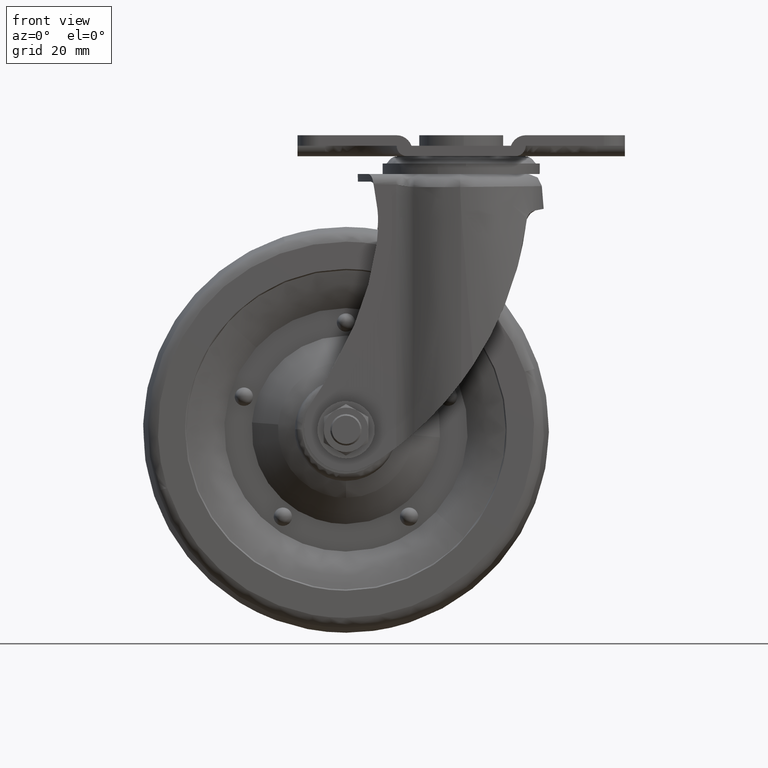
[diagram: clean part render]
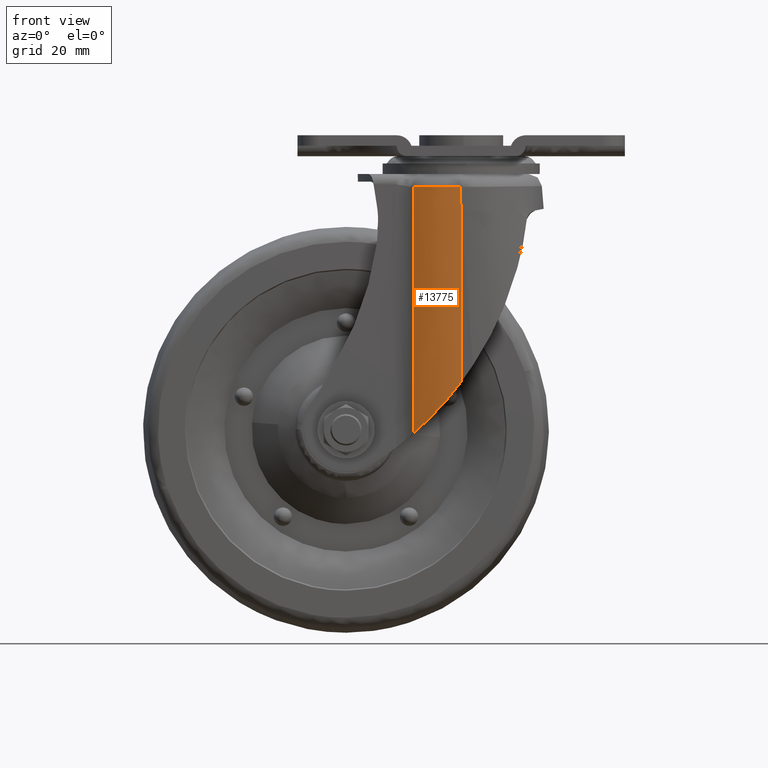
[diagram: same view with one face highlighted and labeled with its STEP entity id]
A machine part, front view. The second image highlights one B-rep face of the part: STEP entity #13775.
In plain terms, the highlighted face is a freeform B-spline surface patch.
Its self-contained STEP definition (entity closure, byte-faithful):
#13026=CARTESIAN_POINT('',(-0.369725806566333,-31.497833906916451,-19.799999999999550));
#13027=VERTEX_POINT('',#13026);
#13028=CARTESIAN_POINT('',(-17.988086873891149,-25.859047059812749,-19.800000000000001));
#13029=VERTEX_POINT('',#13028);
#13030=CARTESIAN_POINT('',(-0.369725806566333,-31.497833906916451,-19.799999999999550));
#13031=CARTESIAN_POINT('',(-10.044941774683258,-31.384363830893584,-19.800000000000001));
#13032=CARTESIAN_POINT('',(-17.988086873891159,-25.859047059812760,-19.800000000000001));
#13040=(BOUNDED_CURVE()B_SPLINE_CURVE(2,(#13030,#13031,#13032),.UNSPECIFIED.,.F.,.U.)CURVE()GEOMETRIC_REPRESENTATION_ITEM()QUASI_UNIFORM_CURVE()RATIONAL_B_SPLINE_CURVE((1.0,0.955919014907805,1.0))REPRESENTATION_ITEM(''));
#13041=EDGE_CURVE('',#13027,#13029,#13040,.T.);
#13347=CARTESIAN_POINT('',(-17.988086873891149,-25.859047059812749,-113.639846801508200));
#13348=VERTEX_POINT('',#13347);
#13349=CARTESIAN_POINT('',(-17.988086873891149,-25.859047059812749,-19.800000000000001));
#13350=CARTESIAN_POINT('',(-17.988086873891149,-25.859047059812749,-113.639846801508200));
#13351=QUASI_UNIFORM_CURVE('',1,(#13349,#13350),.UNSPECIFIED.,.F.,.U.);
#13352=EDGE_CURVE('',#13029,#13348,#13351,.T.);
#13418=CARTESIAN_POINT('',(-0.000322000000095,-31.500000000000000,-29.318360351803150));
#13419=VERTEX_POINT('',#13418);
#13420=CARTESIAN_POINT('',(-0.000322000000095,-31.500000000000000,-29.318360351803150));
#13421=CARTESIAN_POINT('',(-0.185030254001256,-31.499999999999996,-24.559016538110559));
#13422=CARTESIAN_POINT('',(-0.369725806565046,-31.497833906916451,-19.800000000032711));
#13430=(BOUNDED_CURVE()B_SPLINE_CURVE(2,(#13420,#13421,#13422),.UNSPECIFIED.,.F.,.U.)CURVE()GEOMETRIC_REPRESENTATION_ITEM()QUASI_UNIFORM_CURVE()RATIONAL_B_SPLINE_CURVE((1.0,0.999982808640822,1.0))REPRESENTATION_ITEM(''));
#13431=EDGE_CURVE('',#13419,#13027,#13430,.T.);
#13719=CARTESIAN_POINT('',(0.274563868198657,-31.498800576521390,-115.985842971545910));
#13720=CARTESIAN_POINT('',(0.274563868198657,-31.498800576521390,-17.395353925710911));
#13721=CARTESIAN_POINT('',(-10.276011459862316,-31.590874052525802,-115.985842971545960));
#13722=CARTESIAN_POINT('',(-10.276011459862316,-31.590874052525802,-17.395353925710907));
#13723=CARTESIAN_POINT('',(-18.753463104601352,-25.309478436169211,-115.985842971545910));
#13724=CARTESIAN_POINT('',(-18.753463104601352,-25.309478436169211,-17.395353925710911));
#13732=(BOUNDED_SURFACE()B_SPLINE_SURFACE(1,2,((#13719,#13721,#13723),(#13720,#13722,#13724)),.UNSPECIFIED.,.F.,.F.,.U.)B_SPLINE_SURFACE_WITH_KNOTS((2,2),(3,3),(0.0,98.590489045835014),(0.0,20.541115767683330),.UNSPECIFIED.)GEOMETRIC_REPRESENTATION_ITEM()RATIONAL_B_SPLINE_SURFACE(((1.0,0.946923351914694,0.997262890280492),(1.0,0.946923351914694,0.997262890280492)))REPRESENTATION_ITEM('')SURFACE());
#13733=ORIENTED_EDGE('',*,*,#13431,.T.);
#13734=ORIENTED_EDGE('',*,*,#13041,.T.);
#13735=ORIENTED_EDGE('',*,*,#13352,.T.);
#13736=CARTESIAN_POINT('',(-0.000322000000094,-31.500000000000000,-94.213526390014906));
#13737=VERTEX_POINT('',#13736);
#13738=CARTESIAN_POINT('',(-0.000322000000027,-31.500000000000000,-94.213526390014962));
#13739=CARTESIAN_POINT('',(-0.686058448308626,-31.499999999999989,-95.125542541847736));
#13740=CARTESIAN_POINT('',(-1.384627698495013,-31.477647313421130,-96.029572104286800));
#13741=CARTESIAN_POINT('',(-2.451981953962543,-31.406472408309270,-97.373653620240589));
#13742=CARTESIAN_POINT('',(-2.811017495478358,-31.376465804297020,-97.819686821035987));
#13743=CARTESIAN_POINT('',(-3.354485397630283,-31.321442204760132,-98.485746471866619));
#13744=CARTESIAN_POINT('',(-3.536590083652920,-31.301415194181779,-98.707423856580576));
#13745=CARTESIAN_POINT('',(-3.901633866474933,-31.258015785371249,-99.148804615724629));
#13746=CARTESIAN_POINT('',(-4.084586516214400,-31.234644823498130,-99.368527252586972));
#13747=CARTESIAN_POINT('',(-5.001444730591770,-31.109272470588781,-100.462304204248990));
#13748=CARTESIAN_POINT('',(-5.741640406804667,-30.981746336468369,-101.321854126955700));
#13749=CARTESIAN_POINT('',(-7.233867135285645,-30.667689314347950,-103.010007756939300));
#13750=CARTESIAN_POINT('',(-7.985900296583076,-30.481167017533000,-103.838612310782000));
#13751=CARTESIAN_POINT('',(-9.500056094553493,-30.043735713362601,-105.464750393224800));
#13752=CARTESIAN_POINT('',(-10.262181704416010,-29.792839132118399,-106.262285220057900));
#13753=CARTESIAN_POINT('',(-11.794535508543730,-29.220122447729189,-107.826004647806900));
#13754=CARTESIAN_POINT('',(-12.564768106343690,-28.898321179875669,-108.592191315080400));
#13755=CARTESIAN_POINT('',(-14.110999925818970,-28.175646247216239,-110.092731807261000));
#13756=CARTESIAN_POINT('',(-14.887006038011791,-27.774802667249599,-110.827089069284990));
#13757=CARTESIAN_POINT('',(-15.858836840335229,-27.217782718512101,-111.724661501980190));
#13758=CARTESIAN_POINT('',(-16.150520449994509,-27.046468676748091,-111.992403887485300));
#13759=CARTESIAN_POINT('',(-16.442347468067521,-26.868622332038431,-112.257834456599000));
#13760=CARTESIAN_POINT('',(-16.636923834819381,-26.748580278287282,-112.434272246928400));
#13761=CARTESIAN_POINT('',(-16.734281430626829,-26.687783886112939,-112.522284254030790));
#13762=CARTESIAN_POINT('',(-17.219987221055980,-26.380758922336401,-112.960034877226210));
#13763=CARTESIAN_POINT('',(-17.605642423851730,-26.125078550792360,-113.303352359475300));
#13764=CARTESIAN_POINT('',(-17.988086873891149,-25.859047059812770,-113.639846801508200));
#13765=B_SPLINE_CURVE_WITH_KNOTS('',3,(#13738,#13739,#13740,#13741,#13742,#13743,#13744,#13745,#13746,#13747,#13748,#13749,#13750,#13751,#13752,#13753,#13754,#13755,#13756,#13757,#13758,#13759,#13760,#13761,#13762,#13763,#13764),.UNSPECIFIED.,.F.,.U.,(4,2,2,2,2,2,2,2,2,2,1,2,2,4),(0.0,0.124999999999999,0.187499999999998,0.218749999999998,0.249999999999998,0.374999999999998,0.499999999999999,0.624999999999999,0.749999999999999,0.874999999999999,0.906249999999999,0.921874999999999,0.937499999999998,1.0),.UNSPECIFIED.);
#13766=EDGE_CURVE('',#13737,#13348,#13765,.T.);
#13767=ORIENTED_EDGE('',*,*,#13766,.F.);
#13768=CARTESIAN_POINT('',(-0.000322000000094,-31.500000000000000,-94.213526390014906));
#13769=CARTESIAN_POINT('',(-0.000322000000095,-31.500000000000000,-29.318360351803150));
#13770=QUASI_UNIFORM_CURVE('',1,(#13768,#13769),.UNSPECIFIED.,.F.,.U.);
#13771=EDGE_CURVE('',#13737,#13419,#13770,.T.);
#13772=ORIENTED_EDGE('',*,*,#13771,.T.);
#13773=EDGE_LOOP('',(#13733,#13734,#13735,#13767,#13772));
#13774=FACE_OUTER_BOUND('',#13773,.T.);
#13775=ADVANCED_FACE('',(#13774),#13732,.T.);